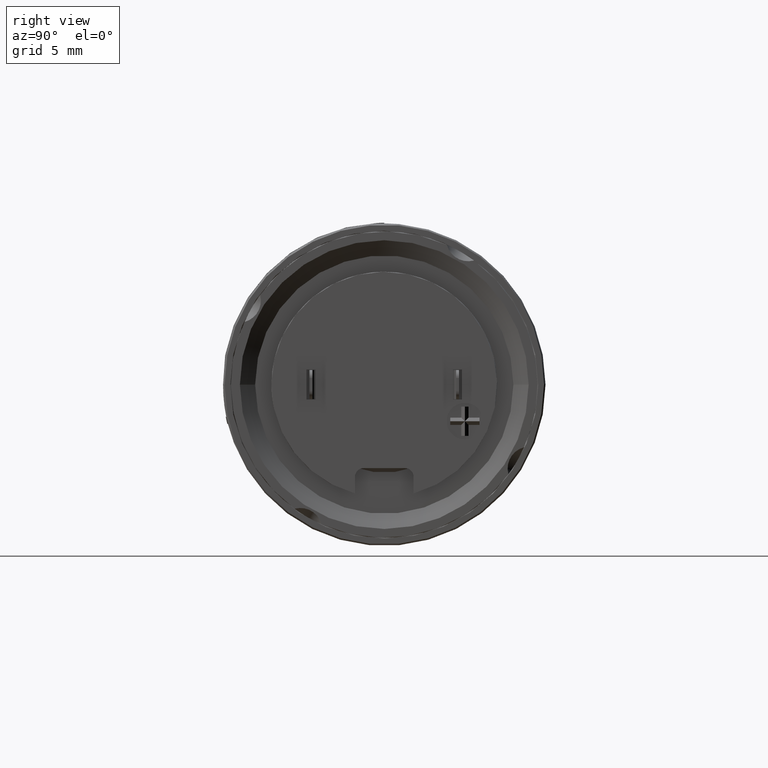
[diagram: clean part render]
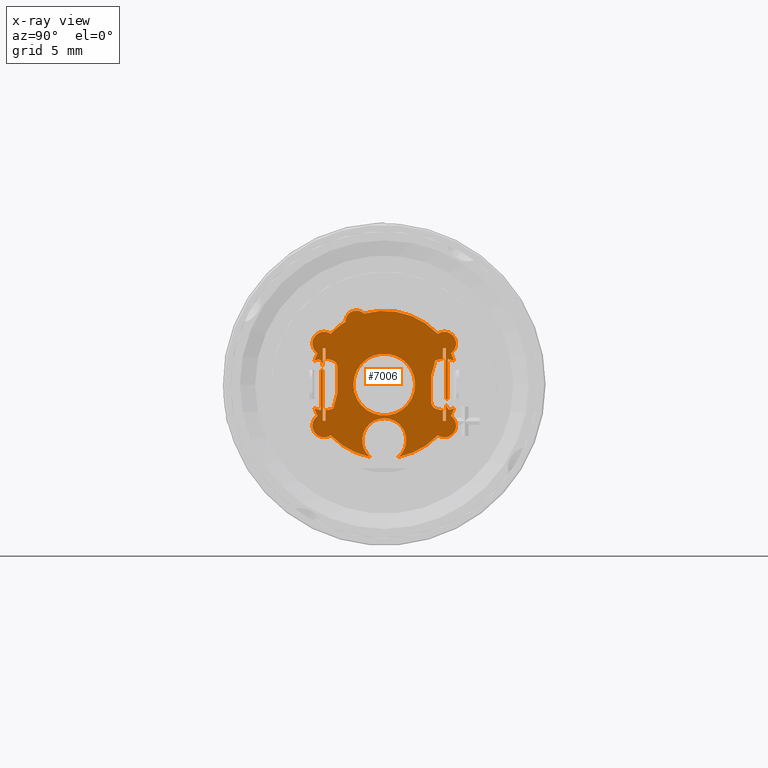
[diagram: x-ray — body ghosted, one internal face saturated and labeled with its STEP entity id]
A machine part, right view, then the same camera in x-ray: the body is ghosted and one INTERNAL B-rep face — a face not visible from any outside direction — is saturated and labeled: STEP entity #7006.
In plain terms, the highlighted planar face has unit normal (-1, 0, 0).
Its self-contained STEP definition (entity closure, byte-faithful):
#1236=CARTESIAN_POINT('',(7.966466986358E0,-1.9E0,4.3E0));
#1237=DIRECTION('',(-1.E0,0.E0,0.E0));
#1238=DIRECTION('',(0.E0,-1.E0,0.E0));
#1239=AXIS2_PLACEMENT_3D('',#1236,#1237,#1238);
#1262=CARTESIAN_POINT('',(7.966466986358E0,0.E0,0.E0));
#1263=DIRECTION('',(-1.E0,0.E0,0.E0));
#1264=DIRECTION('',(0.E0,-1.E0,0.E0));
#1265=AXIS2_PLACEMENT_3D('',#1262,#1263,#1264);
#1400=CARTESIAN_POINT('',(7.966466986358E0,0.E0,0.E0));
#1401=DIRECTION('',(1.E0,0.E0,0.E0));
#1402=DIRECTION('',(0.E0,-1.E0,0.E0));
#1403=AXIS2_PLACEMENT_3D('',#1400,#1401,#1402);
#1430=CARTESIAN_POINT('',(7.966466986358E0,1.127085716196E-14,0.E0));
#1431=DIRECTION('',(-1.E0,0.E0,0.E0));
#1432=DIRECTION('',(0.E0,-1.942130436697E-1,-9.809593741173E-1));
#1433=AXIS2_PLACEMENT_3D('',#1430,#1431,#1432);
#1446=CARTESIAN_POINT('',(7.966466986358E0,0.E0,-3.8E0));
#1447=DIRECTION('',(-1.E0,0.E0,0.E0));
#1448=DIRECTION('',(0.E0,-6.517185113273E-1,-7.584609297738E-1));
#1449=AXIS2_PLACEMENT_3D('',#1446,#1447,#1448);
#1457=CARTESIAN_POINT('',(7.966466986358E0,1.127085716196E-14,0.E0));
#1458=DIRECTION('',(-1.E0,0.E0,0.E0));
#1459=DIRECTION('',(0.E0,7.256735481885E-1,-6.880391714572E-1));
#1460=AXIS2_PLACEMENT_3D('',#1457,#1458,#1459);
#1462=CARTESIAN_POINT('',(7.966466986358E0,4.1E0,-2.8E0));
#1463=DIRECTION('',(-1.E0,0.E0,0.E0));
#1464=DIRECTION('',(0.E0,0.E0,-1.E0));
#1465=AXIS2_PLACEMENT_3D('',#1462,#1463,#1464);
#1490=CARTESIAN_POINT('',(7.966466986358E0,4.1E0,-2.8E0));
#1491=DIRECTION('',(-1.E0,0.E0,0.E0));
#1492=DIRECTION('',(0.E0,5.687812082135E-1,8.224888675132E-1));
#1493=AXIS2_PLACEMENT_3D('',#1490,#1491,#1492);
#1511=CARTESIAN_POINT('',(7.966466986358E0,1.127085716196E-14,0.E0));
#1512=DIRECTION('',(-1.E0,0.E0,0.E0));
#1513=DIRECTION('',(0.E0,9.469165919526E-1,-3.214793428586E-1));
#1514=AXIS2_PLACEMENT_3D('',#1511,#1512,#1513);
#1516=CARTESIAN_POINT('',(7.966466986358E0,4.1E0,0.E0));
#1517=DIRECTION('',(-1.E0,0.E0,0.E0));
#1518=DIRECTION('',(0.E0,3.807633867192E-1,-9.246725059901E-1));
#1519=AXIS2_PLACEMENT_3D('',#1516,#1517,#1518);
#1532=CARTESIAN_POINT('',(7.966466986358E0,4.8E0,-1.25E0));
#1533=DIRECTION('',(-1.E0,0.E0,0.E0));
#1534=DIRECTION('',(0.E0,-6.230062679591E-1,-7.822168433904E-1));
#1535=AXIS2_PLACEMENT_3D('',#1532,#1533,#1534);
#1541=DIRECTION('',(0.E0,0.E0,-1.E0));
#1542=VECTOR('',#1541,3.468734229313E0);
#1543=CARTESIAN_POINT('',(7.966466986358E0,4.2E0,2.468734229313E0));
#1544=LINE('',#1543,#1542);
#1550=DIRECTION('',(0.E0,0.E0,-1.E0));
#1551=VECTOR('',#1550,1.224215912429E0);
#1552=CARTESIAN_POINT('',(7.966466986358E0,4.2E0,-1.25E0));
#1553=LINE('',#1552,#1551);
#1559=DIRECTION('',(0.E0,-1.E0,0.E0));
#1560=VECTOR('',#1559,1.334132054566E-1);
#1561=CARTESIAN_POINT('',(7.966466986358E0,4.333413205457E0,-1.E0));
#1562=LINE('',#1561,#1560);
#1571=DIRECTION('',(0.E0,0.E0,1.E0));
#1572=VECTOR('',#1571,2.734363939754E0);
#1573=CARTESIAN_POINT('',(7.966466986358E0,4.333413205457E0,-1.E0));
#1574=LINE('',#1573,#1572);
#1579=CARTESIAN_POINT('',(7.966466986358E0,4.1E0,0.E0));
#1580=DIRECTION('',(-1.E0,0.E0,0.E0));
#1581=DIRECTION('',(0.E0,1.333789745466E-1,9.910651084308E-1));
#1582=AXIS2_PLACEMENT_3D('',#1579,#1580,#1581);
#1596=CARTESIAN_POINT('',(7.966466986358E0,1.127085716196E-14,0.E0));
#1597=DIRECTION('',(-1.E0,0.E0,0.E0));
#1598=DIRECTION('',(0.E0,9.049359474202E-1,4.255478011536E-1));
#1599=AXIS2_PLACEMENT_3D('',#1596,#1597,#1598);
#1601=CARTESIAN_POINT('',(7.966466986358E0,4.1E0,2.8E0));
#1602=DIRECTION('',(-1.E0,0.E0,0.E0));
#1603=DIRECTION('',(0.E0,0.E0,1.E0));
#1604=AXIS2_PLACEMENT_3D('',#1601,#1602,#1603);
#1622=CARTESIAN_POINT('',(7.966466986358E0,4.1E0,2.8E0));
#1623=DIRECTION('',(-1.E0,0.E0,0.E0));
#1624=DIRECTION('',(0.E0,-5.591227975833E-1,8.290848552607E-1));
#1625=AXIS2_PLACEMENT_3D('',#1622,#1623,#1624);
#1651=CARTESIAN_POINT('',(7.966466986358E0,1.127085716196E-14,0.E0));
#1652=DIRECTION('',(-1.E0,0.E0,0.E0));
#1653=DIRECTION('',(0.E0,-2.741938087816E-1,9.616744538698E-1));
#1654=AXIS2_PLACEMENT_3D('',#1651,#1652,#1653);
#1656=DIRECTION('',(0.E0,0.E0,-1.E0));
#1657=VECTOR('',#1656,7.215937083474E-1);
#1658=CARTESIAN_POINT('',(7.966466986358E0,4.E0,2.468734229313E0));
#1659=LINE('',#1658,#1657);
#1665=DIRECTION('',(0.E0,0.E0,-1.E0));
#1666=VECTOR('',#1665,7.270753914634E-1);
#1667=CARTESIAN_POINT('',(7.966466986358E0,4.E0,-1.747140520966E0));
#1668=LINE('',#1667,#1666);
#1674=DIRECTION('',(0.E0,-1.E0,0.E0));
#1675=VECTOR('',#1674,2.E-1);
#1676=CARTESIAN_POINT('',(7.966466986358E0,4.2E0,2.468734229313E0));
#1677=LINE('',#1676,#1675);
#1725=CARTESIAN_POINT('',(7.966466986358E0,4.1E0,0.E0));
#1726=DIRECTION('',(-1.E0,0.E0,0.E0));
#1727=DIRECTION('',(0.E0,-5.714285714286E-2,-9.983660119804E-1));
#1728=AXIS2_PLACEMENT_3D('',#1725,#1726,#1727);
#1734=CARTESIAN_POINT('',(7.966466986358E0,3.7E0,-1.184271928233E0));
#1735=DIRECTION('',(-1.E0,0.E0,0.E0));
#1736=DIRECTION('',(0.E0,-3.200000000026E-1,-9.474175425853E-1));
#1737=AXIS2_PLACEMENT_3D('',#1734,#1735,#1736);
#1748=DIRECTION('',(0.E0,0.E0,1.E0));
#1749=VECTOR('',#1748,1.784271928189E0);
#1750=CARTESIAN_POINT('',(7.966466986358E0,3.2E0,-1.184271928189E0));
#1751=LINE('',#1750,#1749);
#1760=DIRECTION('',(0.E0,2.588190451029E-1,9.659258262890E-1));
#1761=VECTOR('',#1760,1.072058593299E0);
#1762=CARTESIAN_POINT('',(7.966466986358E0,3.2E0,5.999999999999E-1));
#1763=LINE('',#1762,#1761);
#1776=CARTESIAN_POINT('',(7.966466986358E0,4.1E0,0.E0));
#1777=DIRECTION('',(-1.E0,0.E0,0.E0));
#1778=DIRECTION('',(0.E0,-3.557318963360E-1,9.345880471787E-1));
#1779=AXIS2_PLACEMENT_3D('',#1776,#1777,#1778);
#1785=DIRECTION('',(0.E0,-1.E0,0.E0));
#1786=VECTOR('',#1785,2.E-1);
#1787=CARTESIAN_POINT('',(7.966466986358E0,4.2E0,-2.474215912429E0));
#1788=LINE('',#1787,#1786);
#1866=CARTESIAN_POINT('',(7.966466986358E0,-4.1E0,-2.8E0));
#1867=DIRECTION('',(-1.E0,0.E0,0.E0));
#1868=DIRECTION('',(0.E0,5.591227975834E-1,-8.290848552606E-1));
#1869=AXIS2_PLACEMENT_3D('',#1866,#1867,#1868);
#1895=DIRECTION('',(0.E0,0.E0,1.E0));
#1896=VECTOR('',#1895,7.215937083474E-1);
#1897=CARTESIAN_POINT('',(7.966466986358E0,-4.E0,-2.468734229313E0));
#1898=LINE('',#1897,#1896);
#1904=DIRECTION('',(0.E0,0.E0,1.E0));
#1905=VECTOR('',#1904,7.270753914634E-1);
#1906=CARTESIAN_POINT('',(7.966466986358E0,-4.E0,1.747140520966E0));
#1907=LINE('',#1906,#1905);
#1913=DIRECTION('',(0.E0,1.E0,0.E0));
#1914=VECTOR('',#1913,2.E-1);
#1915=CARTESIAN_POINT('',(7.966466986358E0,-4.2E0,-2.468734229313E0));
#1916=LINE('',#1915,#1914);
#1917=DIRECTION('',(0.E0,0.E0,1.E0));
#1918=VECTOR('',#1917,3.468734229313E0);
#1919=CARTESIAN_POINT('',(7.966466986358E0,-4.2E0,-2.468734229313E0));
#1920=LINE('',#1919,#1918);
#1926=DIRECTION('',(0.E0,0.E0,1.E0));
#1927=VECTOR('',#1926,1.224215912429E0);
#1928=CARTESIAN_POINT('',(7.966466986358E0,-4.2E0,1.25E0));
#1929=LINE('',#1928,#1927);
#1935=DIRECTION('',(1.997205036774E-14,-1.E0,0.E0));
#1936=VECTOR('',#1935,1.334132054566E-1);
#1937=CARTESIAN_POINT('',(7.966466986358E0,-4.2E0,1.E0));
#1938=LINE('',#1937,#1936);
#1947=DIRECTION('',(0.E0,0.E0,1.E0));
#1948=VECTOR('',#1947,2.734363939754E0);
#1949=CARTESIAN_POINT('',(7.966466986358E0,-4.333413205457E0,
-1.734363939754E0));
#1950=LINE('',#1949,#1948);
#1955=CARTESIAN_POINT('',(7.966466986358E0,-4.1E0,0.E0));
#1956=DIRECTION('',(-1.E0,0.E0,0.E0));
#1957=DIRECTION('',(0.E0,-1.333789745466E-1,-9.910651084308E-1));
#1958=AXIS2_PLACEMENT_3D('',#1955,#1956,#1957);
#1972=CARTESIAN_POINT('',(7.966466986358E0,1.127085716196E-14,0.E0));
#1973=DIRECTION('',(-1.E0,0.E0,0.E0));
#1974=DIRECTION('',(0.E0,-9.049359474202E-1,-4.255478011536E-1));
#1975=AXIS2_PLACEMENT_3D('',#1972,#1973,#1974);
#1977=CARTESIAN_POINT('',(7.966466986358E0,-4.1E0,-2.8E0));
#1978=DIRECTION('',(-1.E0,0.E0,0.E0));
#1979=DIRECTION('',(0.E0,0.E0,-1.E0));
#1980=AXIS2_PLACEMENT_3D('',#1977,#1978,#1979);
#2041=DIRECTION('',(0.E0,1.E0,0.E0));
#2042=VECTOR('',#2041,2.E-1);
#2043=CARTESIAN_POINT('',(7.966466986358E0,-4.2E0,2.474215912429E0));
#2044=LINE('',#2043,#2042);
#2045=CARTESIAN_POINT('',(7.966466986358E0,-4.1E0,2.8E0));
#2046=DIRECTION('',(-1.E0,0.E0,0.E0));
#2047=DIRECTION('',(0.E0,0.E0,1.E0));
#2048=AXIS2_PLACEMENT_3D('',#2045,#2046,#2047);
#2065=CARTESIAN_POINT('',(7.966466986358E0,-4.1E0,2.8E0));
#2066=DIRECTION('',(-1.E0,0.E0,0.E0));
#2067=DIRECTION('',(0.E0,-5.687812082134E-1,-8.224888675133E-1));
#2068=AXIS2_PLACEMENT_3D('',#2065,#2066,#2067);
#2093=CARTESIAN_POINT('',(7.966466986358E0,1.127085716196E-14,0.E0));
#2094=DIRECTION('',(-1.E0,0.E0,0.E0));
#2095=DIRECTION('',(0.E0,-9.469165919526E-1,3.214793428586E-1));
#2096=AXIS2_PLACEMENT_3D('',#2093,#2094,#2095);
#2098=CARTESIAN_POINT('',(7.966466986358E0,-4.1E0,0.E0));
#2099=DIRECTION('',(-1.E0,0.E0,0.E0));
#2100=DIRECTION('',(0.E0,-3.807633867192E-1,9.246725059902E-1));
#2101=AXIS2_PLACEMENT_3D('',#2098,#2099,#2100);
#2114=CARTESIAN_POINT('',(7.966466986358E0,-4.8E0,1.25E0));
#2115=DIRECTION('',(-1.E0,0.E0,0.E0));
#2116=DIRECTION('',(0.E0,6.230062679591E-1,7.822168433904E-1));
#2117=AXIS2_PLACEMENT_3D('',#2114,#2115,#2116);
#2157=CARTESIAN_POINT('',(7.966466986358E0,1.127085716196E-14,0.E0));
#2158=DIRECTION('',(-1.E0,0.E0,0.E0));
#2159=DIRECTION('',(0.E0,-7.256735481885E-1,6.880391714572E-1));
#2160=AXIS2_PLACEMENT_3D('',#2157,#2158,#2159);
#2162=CARTESIAN_POINT('',(7.966466986358E0,-1.9E0,4.3E0));
#2163=DIRECTION('',(-1.E0,0.E0,0.E0));
#2164=DIRECTION('',(0.E0,-9.996318811456E-1,-2.713120338671E-2));
#2165=AXIS2_PLACEMENT_3D('',#2162,#2163,#2164);
#2239=CARTESIAN_POINT('',(7.966466986358E0,-4.1E0,0.E0));
#2240=DIRECTION('',(-1.E0,0.E0,0.E0));
#2241=DIRECTION('',(0.E0,5.714285714286E-2,9.983660119804E-1));
#2242=AXIS2_PLACEMENT_3D('',#2239,#2240,#2241);
#2248=CARTESIAN_POINT('',(7.966466986358E0,-3.7E0,1.184271928233E0));
#2249=DIRECTION('',(-1.E0,0.E0,0.E0));
#2250=DIRECTION('',(0.E0,3.200000000026E-1,9.474175425853E-1));
#2251=AXIS2_PLACEMENT_3D('',#2248,#2249,#2250);
#2262=DIRECTION('',(0.E0,0.E0,-1.E0));
#2263=VECTOR('',#2262,1.784271928189E0);
#2264=CARTESIAN_POINT('',(7.966466986358E0,-3.2E0,1.184271928189E0));
#2265=LINE('',#2264,#2263);
#2274=DIRECTION('',(0.E0,-2.588190451029E-1,-9.659258262890E-1));
#2275=VECTOR('',#2274,1.072058593299E0);
#2276=CARTESIAN_POINT('',(7.966466986358E0,-3.2E0,-5.999999999999E-1));
#2277=LINE('',#2276,#2275);
#2290=CARTESIAN_POINT('',(7.966466986358E0,-4.1E0,0.E0));
#2291=DIRECTION('',(-1.E0,0.E0,0.E0));
#2292=DIRECTION('',(0.E0,3.557318963360E-1,-9.345880471787E-1));
#2293=AXIS2_PLACEMENT_3D('',#2290,#2291,#2292);
#5137=CARTESIAN_POINT('',(7.966466986358E0,-2.106775894189E0,0.E0));
#5138=CARTESIAN_POINT('',(7.966466986358E0,2.106775894189E0,0.E0));
#5139=VERTEX_POINT('',#5137);
#5140=VERTEX_POINT('',#5138);
#5141=CARTESIAN_POINT('',(7.966466986358E0,-3.652701761933E0,3.463267884209E0));
#5142=CARTESIAN_POINT('',(7.966466986358E0,-2.649723910859E0,4.279651597460E0));
#5143=VERTEX_POINT('',#5141);
#5144=VERTEX_POINT('',#5142);
#5145=CARTESIAN_POINT('',(7.966466986358E0,-1.380163588638E0,4.840620111930E0));
#5146=CARTESIAN_POINT('',(7.966466986358E0,3.652701761933E0,3.463267884209E0));
#5147=VERTEX_POINT('',#5145);
#5148=VERTEX_POINT('',#5146);
#5149=CARTESIAN_POINT('',(7.966466986358E0,-4.766335926759E0,1.618176885483E0));
#5150=CARTESIAN_POINT('',(7.966466986358E0,-4.555024966571E0,2.142008905989E0));
#5151=VERTEX_POINT('',#5149);
#5152=VERTEX_POINT('',#5150);
#5153=CARTESIAN_POINT('',(7.966466986358E0,-4.555024966571E0,
-2.142008905989E0));
#5154=CARTESIAN_POINT('',(7.966466986358E0,-4.766335926759E0,
-1.618176885483E0));
#5155=VERTEX_POINT('',#5153);
#5156=VERTEX_POINT('',#5154);
#5157=CARTESIAN_POINT('',(7.966466986358E0,4.766335926759E0,-1.618176885483E0));
#5158=CARTESIAN_POINT('',(7.966466986358E0,4.555024966571E0,-2.142008905989E0));
#5159=VERTEX_POINT('',#5157);
#5160=VERTEX_POINT('',#5158);
#5161=CARTESIAN_POINT('',(7.966466986358E0,4.555024966571E0,2.142008905989E0));
#5162=CARTESIAN_POINT('',(7.966466986358E0,4.766335926759E0,1.618176885483E0));
#5163=VERTEX_POINT('',#5161);
#5164=VERTEX_POINT('',#5162);
#5165=CARTESIAN_POINT('',(7.966466986358E0,3.652701761933E0,-3.463267884209E0));
#5166=CARTESIAN_POINT('',(7.966466986358E0,9.775777669910E-1,
-4.937691394661E0));
#5167=VERTEX_POINT('',#5165);
#5168=VERTEX_POINT('',#5166);
#5169=CARTESIAN_POINT('',(7.966466986358E0,-9.775777669910E-1,
-4.937691394661E0));
#5170=CARTESIAN_POINT('',(7.966466986358E0,-3.652701761933E0,
-3.463267884209E0));
#5171=VERTEX_POINT('',#5169);
#5172=VERTEX_POINT('',#5170);
#5173=CARTESIAN_POINT('',(7.966466986358E0,-2.65E0,4.3E0));
#5174=VERTEX_POINT('',#5173);
#5183=CARTESIAN_POINT('',(7.966466986358E0,-4.E0,1.747140520966E0));
#5184=CARTESIAN_POINT('',(7.966466986358E0,-3.539999999999E0,1.657980699525E0));
#5185=VERTEX_POINT('',#5183);
#5186=VERTEX_POINT('',#5184);
#5187=CARTESIAN_POINT('',(7.966466986358E0,-3.477469181412E0,
-1.635529082563E0));
#5188=CARTESIAN_POINT('',(7.966466986358E0,-4.E0,-1.747140520966E0));
#5189=VERTEX_POINT('',#5187);
#5190=VERTEX_POINT('',#5188);
#5191=CARTESIAN_POINT('',(7.966466986358E0,-3.2E0,1.184271928233E0));
#5192=VERTEX_POINT('',#5191);
#5193=CARTESIAN_POINT('',(7.966466986358E0,-3.2E0,-5.999999999999E-1));
#5194=VERTEX_POINT('',#5193);
#5195=CARTESIAN_POINT('',(7.966466986358E0,-4.333413205457E0,
-1.734363939754E0));
#5196=CARTESIAN_POINT('',(7.966466986358E0,-4.333413205457E0,1.E0));
#5197=VERTEX_POINT('',#5195);
#5198=VERTEX_POINT('',#5196);
#5199=CARTESIAN_POINT('',(7.966466986358E0,-4.2E0,1.E0));
#5200=VERTEX_POINT('',#5199);
#5201=CARTESIAN_POINT('',(7.966466986358E0,-4.1E0,-3.6E0));
#5202=VERTEX_POINT('',#5201);
#5203=CARTESIAN_POINT('',(7.966466986358E0,4.1E0,-3.6E0));
#5204=VERTEX_POINT('',#5203);
#5205=CARTESIAN_POINT('',(7.966466986358E0,4.E0,-1.747140520966E0));
#5206=CARTESIAN_POINT('',(7.966466986358E0,3.539999999999E0,-1.657980699525E0));
#5207=VERTEX_POINT('',#5205);
#5208=VERTEX_POINT('',#5206);
#5209=CARTESIAN_POINT('',(7.966466986358E0,4.333413205457E0,-1.E0));
#5210=CARTESIAN_POINT('',(7.966466986358E0,4.333413205457E0,1.734363939754E0));
#5211=VERTEX_POINT('',#5209);
#5212=VERTEX_POINT('',#5210);
#5213=CARTESIAN_POINT('',(7.966466986358E0,4.2E0,-1.E0));
#5214=VERTEX_POINT('',#5213);
#5215=CARTESIAN_POINT('',(7.966466986358E0,4.1E0,3.6E0));
#5216=VERTEX_POINT('',#5215);
#5217=CARTESIAN_POINT('',(7.966466986358E0,4.426196239225E0,-1.719330106034E0));
#5218=CARTESIAN_POINT('',(7.966466986358E0,4.2E0,-1.25E0));
#5219=VERTEX_POINT('',#5217);
#5220=VERTEX_POINT('',#5218);
#5221=CARTESIAN_POINT('',(7.966466986358E0,3.477469181412E0,1.635529082563E0));
#5222=CARTESIAN_POINT('',(7.966466986358E0,4.E0,1.747140520966E0));
#5223=VERTEX_POINT('',#5221);
#5224=VERTEX_POINT('',#5222);
#5225=CARTESIAN_POINT('',(7.966466986358E0,3.2E0,-1.184271928233E0));
#5226=VERTEX_POINT('',#5225);
#5227=CARTESIAN_POINT('',(7.966466986358E0,3.2E0,5.999999999999E-1));
#5228=VERTEX_POINT('',#5227);
#5229=CARTESIAN_POINT('',(7.966466986358E0,-4.1E0,3.6E0));
#5230=VERTEX_POINT('',#5229);
#5231=CARTESIAN_POINT('',(7.966466986358E0,-4.426196239225E0,1.719330106034E0));
#5232=CARTESIAN_POINT('',(7.966466986358E0,-4.2E0,1.25E0));
#5233=VERTEX_POINT('',#5231);
#5234=VERTEX_POINT('',#5232);
#5251=CARTESIAN_POINT('',(7.966466986358E0,-4.E0,-2.468734229313E0));
#5252=VERTEX_POINT('',#5251);
#5253=CARTESIAN_POINT('',(7.966466986358E0,-4.E0,2.474215912429E0));
#5254=VERTEX_POINT('',#5253);
#5255=CARTESIAN_POINT('',(7.966466986358E0,-4.2E0,-2.468734229313E0));
#5256=VERTEX_POINT('',#5255);
#5257=CARTESIAN_POINT('',(7.966466986358E0,-4.2E0,2.474215912429E0));
#5258=VERTEX_POINT('',#5257);
#5259=CARTESIAN_POINT('',(7.966466986358E0,4.E0,2.468734229313E0));
#5260=VERTEX_POINT('',#5259);
#5261=CARTESIAN_POINT('',(7.966466986358E0,4.E0,-2.474215912429E0));
#5262=VERTEX_POINT('',#5261);
#5263=CARTESIAN_POINT('',(7.966466986358E0,4.2E0,2.468734229313E0));
#5264=VERTEX_POINT('',#5263);
#5265=CARTESIAN_POINT('',(7.966466986358E0,4.2E0,-2.474215912429E0));
#5266=VERTEX_POINT('',#5265);
#6892=CARTESIAN_POINT('',(7.966466986358E0,0.E0,0.E0));
#6893=DIRECTION('',(-1.E0,0.E0,0.E0));
#6894=DIRECTION('',(0.E0,1.E0,0.E0));
#6895=AXIS2_PLACEMENT_3D('',#6892,#6893,#6894);
#6896=PLANE('',#6895);
#6898=ORIENTED_EDGE('',*,*,#6897,.T.);
#6900=ORIENTED_EDGE('',*,*,#6899,.T.);
#6901=ORIENTED_EDGE('',*,*,#6874,.T.);
#6903=ORIENTED_EDGE('',*,*,#6902,.T.);
#6905=ORIENTED_EDGE('',*,*,#6904,.T.);
#6907=ORIENTED_EDGE('',*,*,#6906,.T.);
#6909=ORIENTED_EDGE('',*,*,#6908,.T.);
#6911=ORIENTED_EDGE('',*,*,#6910,.F.);
#6913=ORIENTED_EDGE('',*,*,#6912,.F.);
#6915=ORIENTED_EDGE('',*,*,#6914,.T.);
#6917=ORIENTED_EDGE('',*,*,#6916,.F.);
#6919=ORIENTED_EDGE('',*,*,#6918,.T.);
#6921=ORIENTED_EDGE('',*,*,#6920,.T.);
#6923=ORIENTED_EDGE('',*,*,#6922,.F.);
#6925=ORIENTED_EDGE('',*,*,#6924,.F.);
#6927=ORIENTED_EDGE('',*,*,#6926,.F.);
#6929=ORIENTED_EDGE('',*,*,#6928,.F.);
#6931=ORIENTED_EDGE('',*,*,#6930,.F.);
#6933=ORIENTED_EDGE('',*,*,#6932,.T.);
#6935=ORIENTED_EDGE('',*,*,#6934,.F.);
#6937=ORIENTED_EDGE('',*,*,#6936,.F.);
#6939=ORIENTED_EDGE('',*,*,#6938,.F.);
#6941=ORIENTED_EDGE('',*,*,#6940,.F.);
#6943=ORIENTED_EDGE('',*,*,#6942,.T.);
#6945=ORIENTED_EDGE('',*,*,#6944,.T.);
#6947=ORIENTED_EDGE('',*,*,#6946,.T.);
#6949=ORIENTED_EDGE('',*,*,#6948,.T.);
#6951=ORIENTED_EDGE('',*,*,#6950,.F.);
#6953=ORIENTED_EDGE('',*,*,#6952,.T.);
#6955=ORIENTED_EDGE('',*,*,#6954,.T.);
#6957=ORIENTED_EDGE('',*,*,#6956,.T.);
#6959=ORIENTED_EDGE('',*,*,#6958,.T.);
#6961=ORIENTED_EDGE('',*,*,#6960,.F.);
#6963=ORIENTED_EDGE('',*,*,#6962,.T.);
#6965=ORIENTED_EDGE('',*,*,#6964,.F.);
#6967=ORIENTED_EDGE('',*,*,#6966,.F.);
#6969=ORIENTED_EDGE('',*,*,#6968,.T.);
#6971=ORIENTED_EDGE('',*,*,#6970,.T.);
#6973=ORIENTED_EDGE('',*,*,#6972,.F.);
#6975=ORIENTED_EDGE('',*,*,#6974,.F.);
#6977=ORIENTED_EDGE('',*,*,#6976,.F.);
#6979=ORIENTED_EDGE('',*,*,#6978,.F.);
#6981=ORIENTED_EDGE('',*,*,#6980,.F.);
#6983=ORIENTED_EDGE('',*,*,#6982,.T.);
#6985=ORIENTED_EDGE('',*,*,#6984,.F.);
#6987=ORIENTED_EDGE('',*,*,#6986,.F.);
#6989=ORIENTED_EDGE('',*,*,#6988,.F.);
#6991=ORIENTED_EDGE('',*,*,#6990,.F.);
#6993=ORIENTED_EDGE('',*,*,#6992,.T.);
#6995=ORIENTED_EDGE('',*,*,#6994,.T.);
#6997=ORIENTED_EDGE('',*,*,#6996,.T.);
#6998=EDGE_LOOP('',(#6898,#6900,#6901,#6903,#6905,#6907,#6909,#6911,#6913,#6915,
#6917,#6919,#6921,#6923,#6925,#6927,#6929,#6931,#6933,#6935,#6937,#6939,#6941,
#6943,#6945,#6947,#6949,#6951,#6953,#6955,#6957,#6959,#6961,#6963,#6965,#6967,
#6969,#6971,#6973,#6975,#6977,#6979,#6981,#6983,#6985,#6987,#6989,#6991,#6993,
#6995,#6997));
#6999=FACE_OUTER_BOUND('',#6998,.F.);
#7001=ORIENTED_EDGE('',*,*,#7000,.F.);
#7003=ORIENTED_EDGE('',*,*,#7002,.T.);
#7004=EDGE_LOOP('',(#7001,#7003));
#7005=FACE_BOUND('',#7004,.F.);
#7006=ADVANCED_FACE('',(#6999,#7005),#6896,.F.);
#1240=CIRCLE('',#1239,7.5E-1);
#1266=CIRCLE('',#1265,2.106775894189E0);
#1404=CIRCLE('',#1403,2.106775894189E0);
#1434=CIRCLE('',#1433,5.033533013642E0);
#1450=CIRCLE('',#1449,1.5E0);
#1461=CIRCLE('',#1460,5.033533013642E0);
#1466=CIRCLE('',#1465,8.E-1);
#1494=CIRCLE('',#1493,8.E-1);
#1515=CIRCLE('',#1514,5.033533013642E0);
#1520=CIRCLE('',#1519,1.75E0);
#1536=CIRCLE('',#1535,6.E-1);
#1583=CIRCLE('',#1582,1.75E0);
#1600=CIRCLE('',#1599,5.033533013642E0);
#1605=CIRCLE('',#1604,8.E-1);
#1626=CIRCLE('',#1625,8.E-1);
#1655=CIRCLE('',#1654,5.033533013642E0);
#1729=CIRCLE('',#1728,1.75E0);
#1738=CIRCLE('',#1737,5.E-1);
#1780=CIRCLE('',#1779,1.75E0);
#1870=CIRCLE('',#1869,8.E-1);
#1959=CIRCLE('',#1958,1.75E0);
#1976=CIRCLE('',#1975,5.033533013642E0);
#1981=CIRCLE('',#1980,8.E-1);
#2049=CIRCLE('',#2048,8.E-1);
#2069=CIRCLE('',#2068,8.E-1);
#2097=CIRCLE('',#2096,5.033533013642E0);
#2102=CIRCLE('',#2101,1.75E0);
#2118=CIRCLE('',#2117,6.E-1);
#2161=CIRCLE('',#2160,5.033533013642E0);
#2166=CIRCLE('',#2165,7.5E-1);
#2243=CIRCLE('',#2242,1.75E0);
#2252=CIRCLE('',#2251,5.E-1);
#2294=CIRCLE('',#2293,1.75E0);
#6874=EDGE_CURVE('',#5174,#5147,#1240,.T.);
#6897=EDGE_CURVE('',#5143,#5144,#2161,.T.);
#6899=EDGE_CURVE('',#5144,#5174,#2166,.T.);
#6902=EDGE_CURVE('',#5147,#5148,#1655,.T.);
#6904=EDGE_CURVE('',#5148,#5216,#1626,.T.);
#6906=EDGE_CURVE('',#5216,#5163,#1605,.T.);
#6908=EDGE_CURVE('',#5163,#5164,#1600,.T.);
#6910=EDGE_CURVE('',#5212,#5164,#1583,.T.);
#6912=EDGE_CURVE('',#5211,#5212,#1574,.T.);
#6914=EDGE_CURVE('',#5211,#5214,#1562,.T.);
#6916=EDGE_CURVE('',#5264,#5214,#1544,.T.);
#6918=EDGE_CURVE('',#5264,#5260,#1677,.T.);
#6920=EDGE_CURVE('',#5260,#5224,#1659,.T.);
#6922=EDGE_CURVE('',#5223,#5224,#1780,.T.);
#6924=EDGE_CURVE('',#5228,#5223,#1763,.T.);
#6926=EDGE_CURVE('',#5226,#5228,#1751,.T.);
#6928=EDGE_CURVE('',#5208,#5226,#1738,.T.);
#6930=EDGE_CURVE('',#5207,#5208,#1729,.T.);
#6932=EDGE_CURVE('',#5207,#5262,#1668,.T.);
#6934=EDGE_CURVE('',#5266,#5262,#1788,.T.);
#6936=EDGE_CURVE('',#5220,#5266,#1553,.T.);
#6938=EDGE_CURVE('',#5219,#5220,#1536,.T.);
#6940=EDGE_CURVE('',#5159,#5219,#1520,.T.);
#6942=EDGE_CURVE('',#5159,#5160,#1515,.T.);
#6944=EDGE_CURVE('',#5160,#5204,#1494,.T.);
#6946=EDGE_CURVE('',#5204,#5167,#1466,.T.);
#6948=EDGE_CURVE('',#5167,#5168,#1461,.T.);
#6950=EDGE_CURVE('',#5171,#5168,#1450,.T.);
#6952=EDGE_CURVE('',#5171,#5172,#1434,.T.);
#6954=EDGE_CURVE('',#5172,#5202,#1870,.T.);
#6956=EDGE_CURVE('',#5202,#5155,#1981,.T.);
#6958=EDGE_CURVE('',#5155,#5156,#1976,.T.);
#6960=EDGE_CURVE('',#5197,#5156,#1959,.T.);
#6962=EDGE_CURVE('',#5197,#5198,#1950,.T.);
#6964=EDGE_CURVE('',#5200,#5198,#1938,.T.);
#6966=EDGE_CURVE('',#5256,#5200,#1920,.T.);
#6968=EDGE_CURVE('',#5256,#5252,#1916,.T.);
#6970=EDGE_CURVE('',#5252,#5190,#1898,.T.);
#6972=EDGE_CURVE('',#5189,#5190,#2294,.T.);
#6974=EDGE_CURVE('',#5194,#5189,#2277,.T.);
#6976=EDGE_CURVE('',#5192,#5194,#2265,.T.);
#6978=EDGE_CURVE('',#5186,#5192,#2252,.T.);
#6980=EDGE_CURVE('',#5185,#5186,#2243,.T.);
#6982=EDGE_CURVE('',#5185,#5254,#1907,.T.);
#6984=EDGE_CURVE('',#5258,#5254,#2044,.T.);
#6986=EDGE_CURVE('',#5234,#5258,#1929,.T.);
#6988=EDGE_CURVE('',#5233,#5234,#2118,.T.);
#6990=EDGE_CURVE('',#5151,#5233,#2102,.T.);
#6992=EDGE_CURVE('',#5151,#5152,#2097,.T.);
#6994=EDGE_CURVE('',#5152,#5230,#2069,.T.);
#6996=EDGE_CURVE('',#5230,#5143,#2049,.T.);
#7000=EDGE_CURVE('',#5139,#5140,#1266,.T.);
#7002=EDGE_CURVE('',#5139,#5140,#1404,.T.);